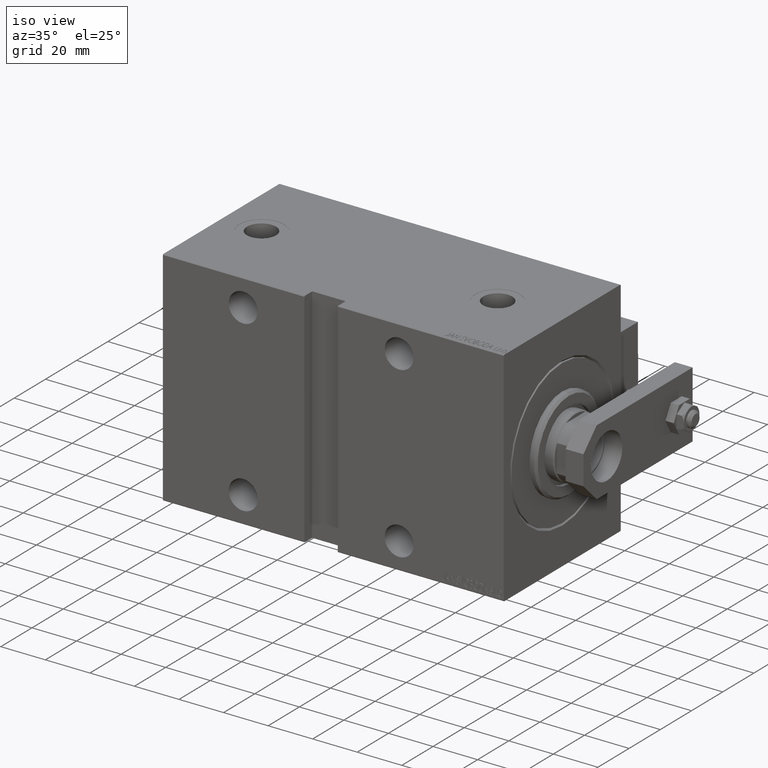
[diagram: clean part render]
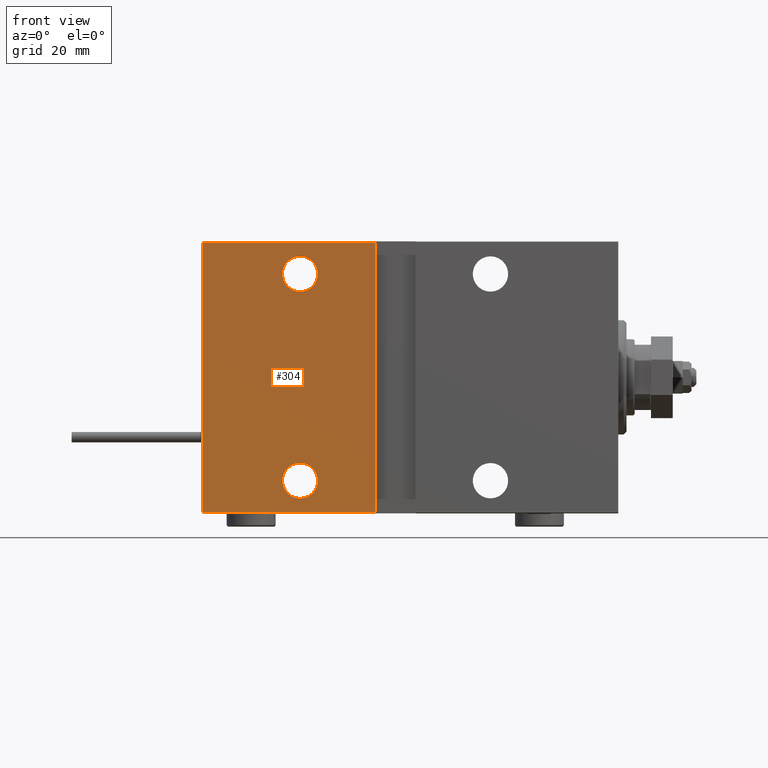
[diagram: tour spotlight — one face highlighted and labeled with its STEP entity id]
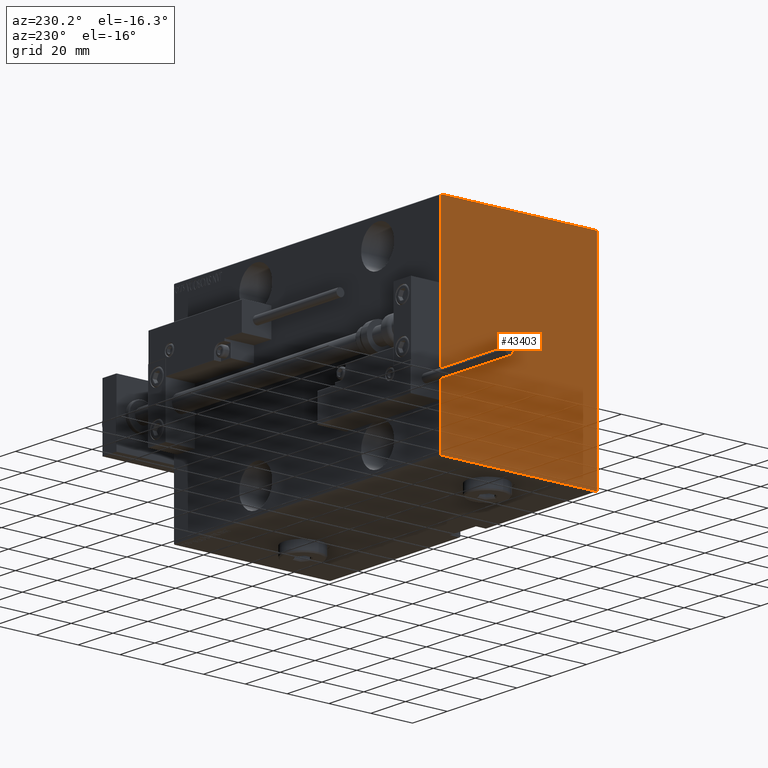
[diagram: tour spotlight — one face highlighted and labeled with its STEP entity id]
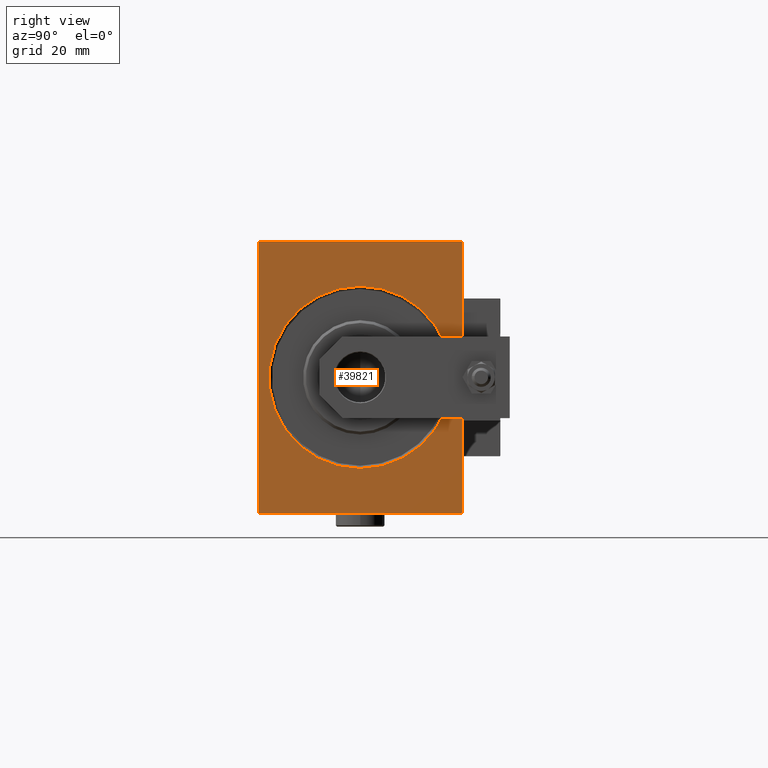
[diagram: tour spotlight — one face highlighted and labeled with its STEP entity id]
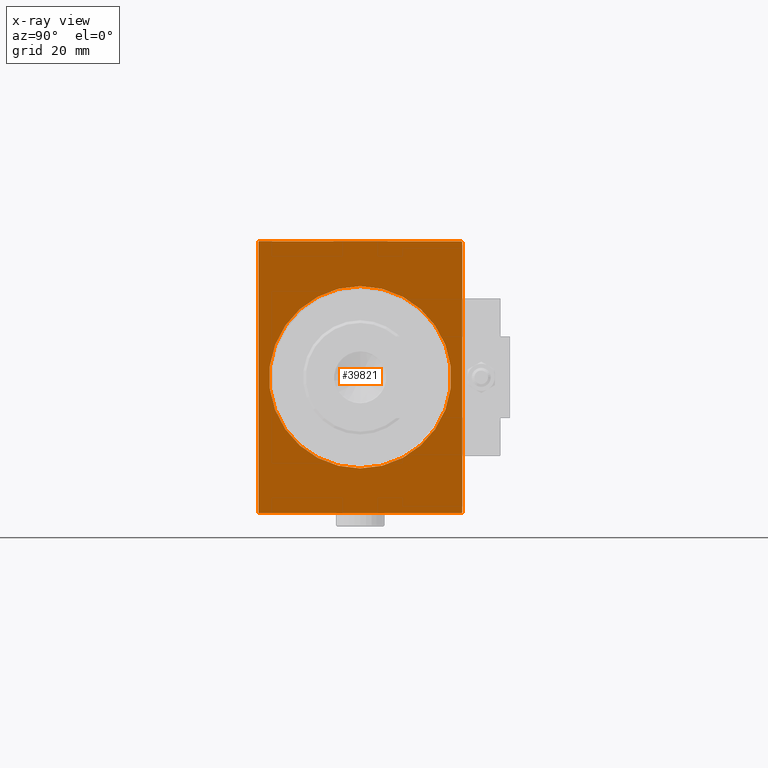
[diagram: x-ray of the same camera — body ghosted, this tour face saturated]
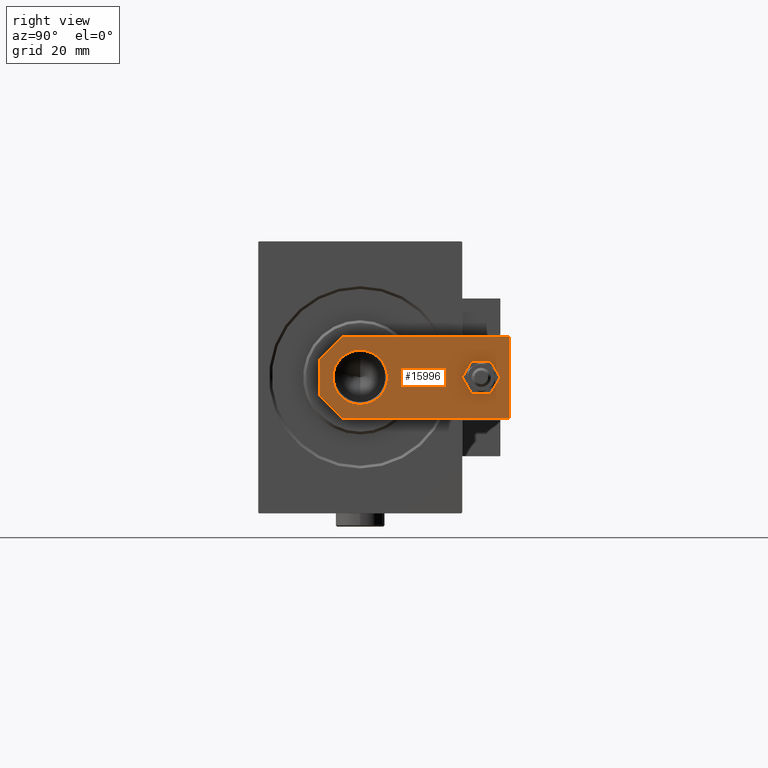
[diagram: tour spotlight — one face highlighted and labeled with its STEP entity id]
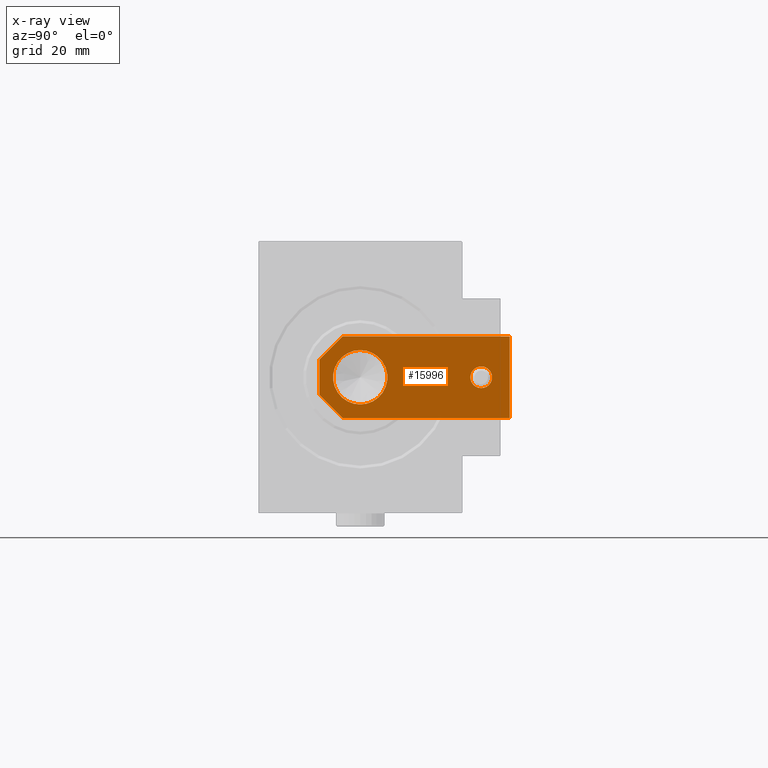
[diagram: x-ray of the same camera — body ghosted, this tour face saturated]
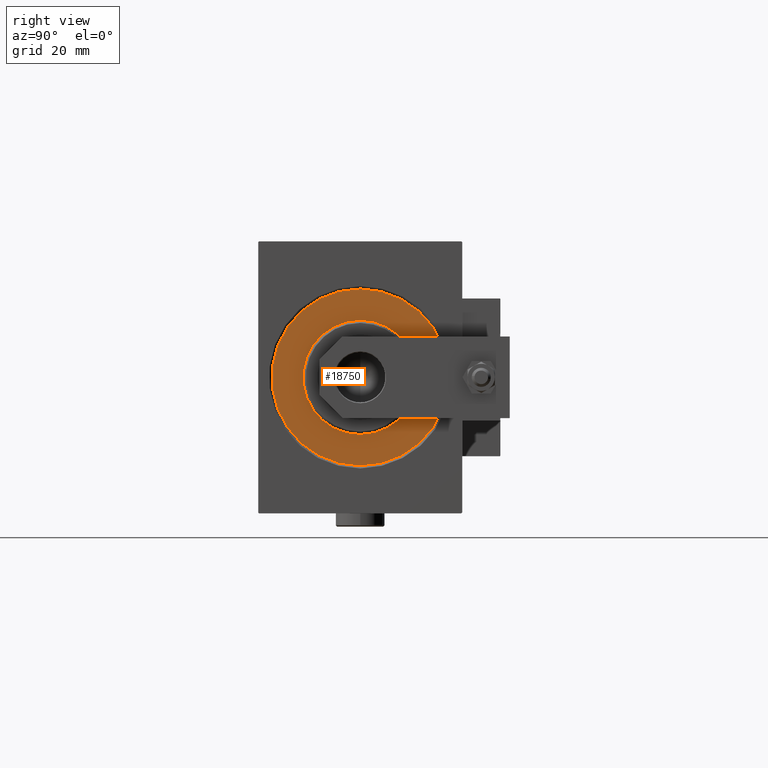
[diagram: tour spotlight — one face highlighted and labeled with its STEP entity id]
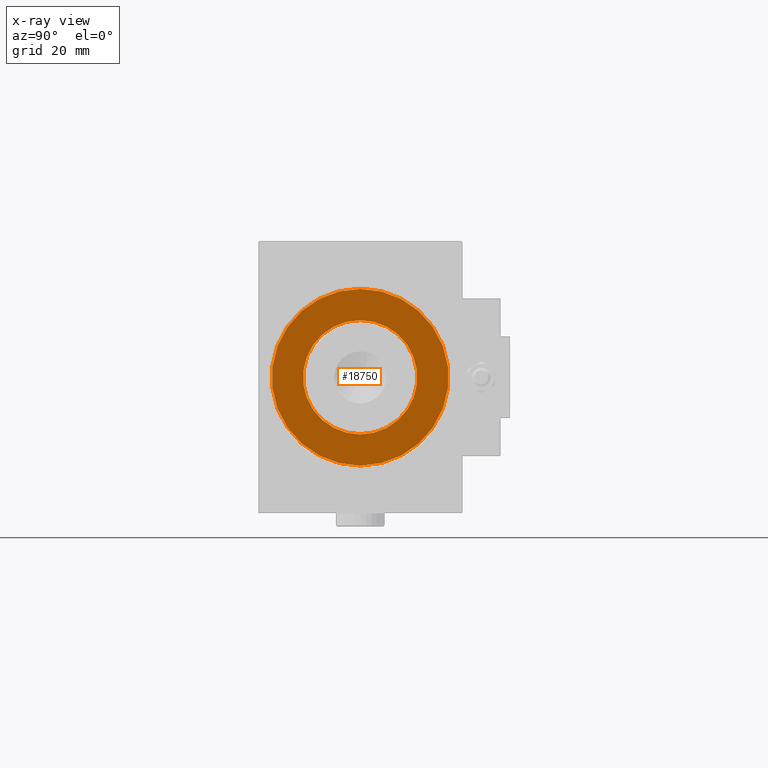
[diagram: x-ray of the same camera — body ghosted, this tour face saturated]
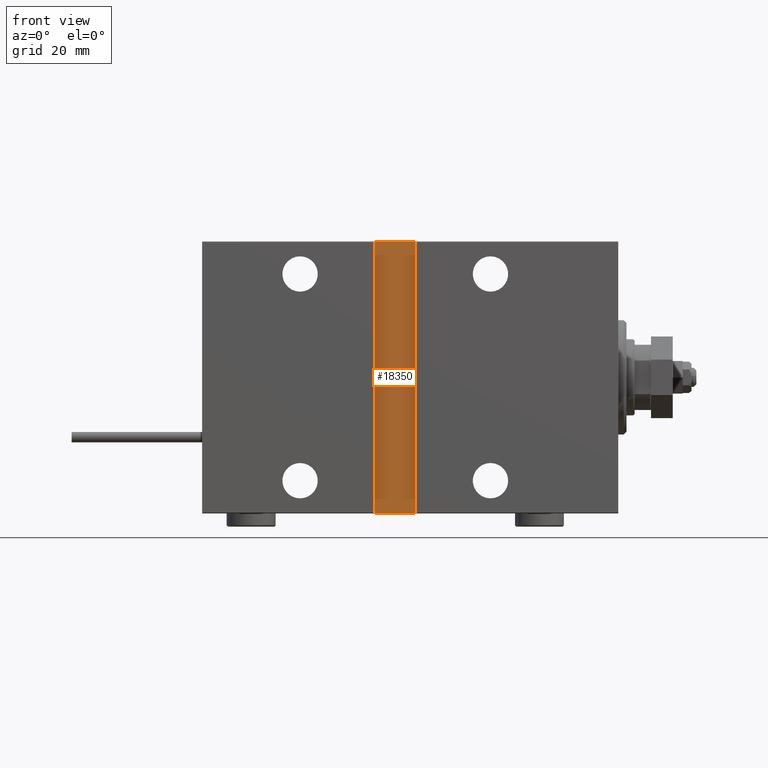
[diagram: tour spotlight — one face highlighted and labeled with its STEP entity id]
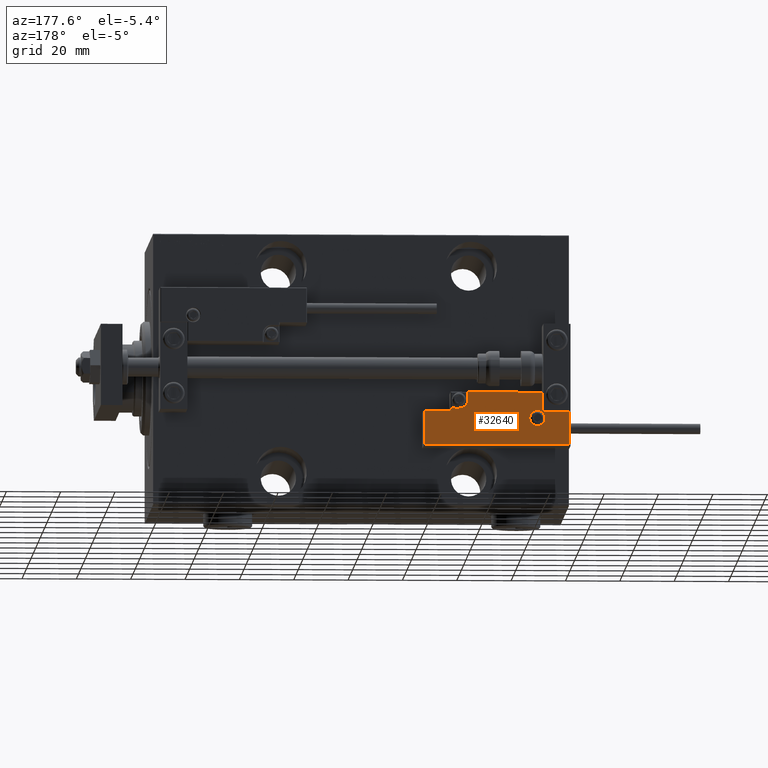
[diagram: tour spotlight — one face highlighted and labeled with its STEP entity id]
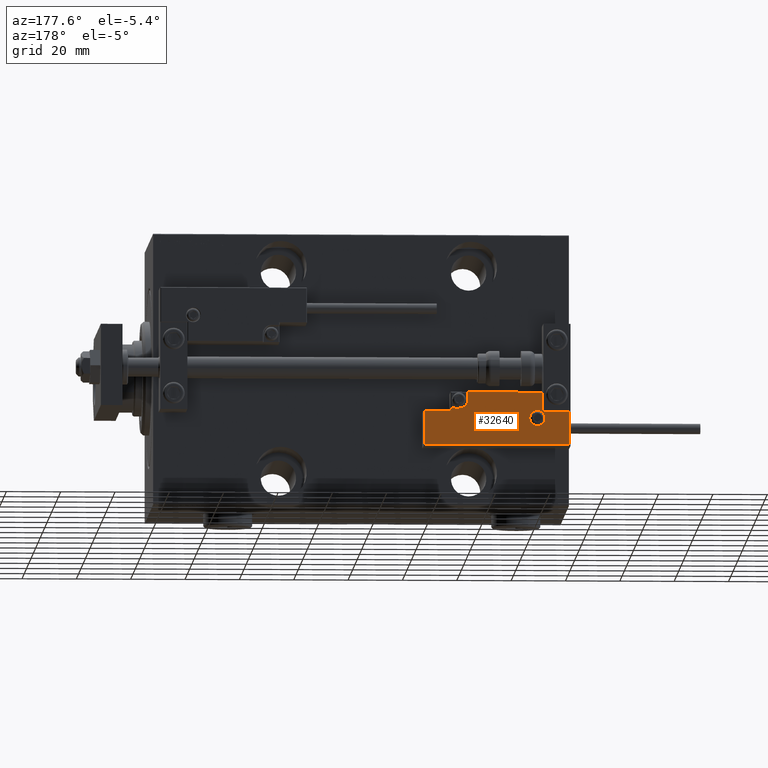
[diagram: tour spotlight — one face highlighted and labeled with its STEP entity id]
A machine part: a face-by-face anatomy tour. The part has 1349 B-rep faces; the first image is the clean iso view, then the 8 largest visible faces are spotlighted one at a time (largest first), each with its STEP entity span.

Face 1 — front view, entity #304. In plain terms, the highlighted planar face has unit normal (-0, 1, -0).
Definition (entity closure, byte-faithful):
#48 = AXIS2_PLACEMENT_3D ( 'NONE', #28458, #44341, #4858 ) ;
#59 = LINE ( 'NONE', #14856, #540 ) ;
#304 = ADVANCED_FACE ( 'NONE', ( #47703, #7703, #43019 ), #35471, .F. ) ;
#540 = VECTOR ( 'NONE', #31710, 1000.000000000000000 ) ;
#1743 = DIRECTION ( 'NONE',  ( 0.000000000000000000, -1.000000000000000000, -1.387778780781445182E-16 ) ) ;
#1776 = EDGE_CURVE ( 'NONE', #15075, #36837, #59, .T. ) ;
#2579 = ORIENTED_EDGE ( 'NONE', *, *, #18296, .F. ) ;
#3871 = EDGE_CURVE ( 'NONE', #50344, #28022, #34418, .T. ) ;
#4858 = DIRECTION ( 'NONE',  ( 0.000000000000000000, 0.000000000000000000, -1.000000000000000000 ) ) ;
#7139 = EDGE_LOOP ( 'NONE', ( #44939, #19442 ) ) ;
#7703 = FACE_BOUND ( 'NONE', #47715, .T. ) ;
#8218 = CARTESIAN_POINT ( 'NONE',  ( 153.0000000000000000, 37.50000000000000711, -50.00000000000000711 ) ) ;
#10520 = CARTESIAN_POINT ( 'NONE',  ( 89.50000000000000000, 37.50000000000000711, -50.00000000000009237 ) ) ;
#10876 = VECTOR ( 'NONE', #26336, 1000.000000000000000 ) ;
#11706 = LINE ( 'NONE', #47809, #29444 ) ;
#12225 = VERTEX_POINT ( 'NONE', #18222 ) ;
#12755 = CARTESIAN_POINT ( 'NONE',  ( 117.0000000000000142, 37.49999999999999289, 31.49999999999999289 ) ) ;
#13784 = CARTESIAN_POINT ( 'NONE',  ( 153.0000000000000000, 37.49999999999999289, 49.70000000000000284 ) ) ;
#14856 = CARTESIAN_POINT ( 'NONE',  ( 153.0000000000000000, 37.50000000000000711, -49.70000000000001705 ) ) ;
#15075 = VERTEX_POINT ( 'NONE', #38653 ) ;
#15098 = ORIENTED_EDGE ( 'NONE', *, *, #3871, .T. ) ;
#16041 = VERTEX_POINT ( 'NONE', #34749 ) ;
#17097 = CIRCLE ( 'NONE', #23730, 6.499999999999999112 ) ;
#18222 = CARTESIAN_POINT ( 'NONE',  ( 117.0000000000000000, 37.50000000000000711, -31.50000000000000000 ) ) ;
#18296 = EDGE_CURVE ( 'NONE', #16041, #36837, #38039, .T. ) ;
#19442 = ORIENTED_EDGE ( 'NONE', *, *, #29183, .T. ) ;
#19862 = CARTESIAN_POINT ( 'NONE',  ( 153.0000000000000000, 37.49999999999999289, 49.70000000000000284 ) ) ;
#23309 = DIRECTION ( 'NONE',  ( 0.000000000000000000, -1.000000000000000000, -1.387778780781445182E-16 ) ) ;
#23575 = DIRECTION ( 'NONE',  ( 0.000000000000000000, 0.000000000000000000, -1.000000000000000000 ) ) ;
#23730 = AXIS2_PLACEMENT_3D ( 'NONE', #44360, #1743, #28728 ) ;
#24338 = DIRECTION ( 'NONE',  ( 0.000000000000000000, -1.000000000000000000, -1.387778780781445182E-16 ) ) ;
#24597 = DIRECTION ( 'NONE',  ( 0.000000000000000000, 0.000000000000000000, -1.000000000000000000 ) ) ;
#25618 = EDGE_LOOP ( 'NONE', ( #51108, #42577, #2579, #46247 ) ) ;
#26336 = DIRECTION ( 'NONE',  ( 1.387778780781444196E-16, 1.387778780781444196E-16, -1.000000000000000000 ) ) ;
#28022 = VERTEX_POINT ( 'NONE', #43839 ) ;
#28062 = EDGE_CURVE ( 'NONE', #28022, #50344, #48597, .T. ) ;
#28458 = CARTESIAN_POINT ( 'NONE',  ( 117.0000000000000000, 37.50000000000000711, -38.00000000000000000 ) ) ;
#28728 = DIRECTION ( 'NONE',  ( 0.000000000000000000, 0.000000000000000000, -1.000000000000000000 ) ) ;
#29183 = EDGE_CURVE ( 'NONE', #29515, #12225, #17097, .T. ) ;
#29444 = VECTOR ( 'NONE', #40018, 1000.000000000000000 ) ;
#29515 = VERTEX_POINT ( 'NONE', #41161 ) ;
#29596 = LINE ( 'NONE', #13784, #48949 ) ;
#31005 = EDGE_CURVE ( 'NONE', #15075, #41556, #11706, .T. ) ;
#31710 = DIRECTION ( 'NONE',  ( -1.000000000000000000, 0.000000000000000000, 0.000000000000000000 ) ) ;
#34418 = CIRCLE ( 'NONE', #41085, 6.499999999999999112 ) ;
#34749 = CARTESIAN_POINT ( 'NONE',  ( 89.49999999999998579, 37.49999999999999289, 49.69999999999997442 ) ) ;
#34992 = CARTESIAN_POINT ( 'NONE',  ( 117.0000000000000142, 37.49999999999999289, 37.99999999999999289 ) ) ;
#35471 = PLANE ( 'NONE',  #43573 ) ;
#36837 = VERTEX_POINT ( 'NONE', #49320 ) ;
#38039 = LINE ( 'NONE', #10520, #10876 ) ;
#38653 = CARTESIAN_POINT ( 'NONE',  ( 153.0000000000000000, 37.50000000000000711, -49.70000000000001705 ) ) ;
#39904 = DIRECTION ( 'NONE',  ( 0.000000000000000000, -1.000000000000000000, -1.387778780781445182E-16 ) ) ;
#40018 = DIRECTION ( 'NONE',  ( 0.000000000000000000, -1.387778780781445182E-16, 1.000000000000000000 ) ) ;
#40815 = DIRECTION ( 'NONE',  ( 1.000000000000000000, 0.000000000000000000, 0.000000000000000000 ) ) ;
#41085 = AXIS2_PLACEMENT_3D ( 'NONE', #48245, #24338, #24597 ) ;
#41161 = CARTESIAN_POINT ( 'NONE',  ( 117.0000000000000000, 37.50000000000000711, -44.50000000000000000 ) ) ;
#41556 = VERTEX_POINT ( 'NONE', #19862 ) ;
#42577 = ORIENTED_EDGE ( 'NONE', *, *, #1776, .T. ) ;
#43019 = FACE_OUTER_BOUND ( 'NONE', #25618, .T. ) ;
#43573 = AXIS2_PLACEMENT_3D ( 'NONE', #8218, #39904, #51326 ) ;
#43839 = CARTESIAN_POINT ( 'NONE',  ( 117.0000000000000142, 37.49999999999999289, 44.49999999999999289 ) ) ;
#44019 = CIRCLE ( 'NONE', #48, 6.499999999999999112 ) ;
#44341 = DIRECTION ( 'NONE',  ( 0.000000000000000000, -1.000000000000000000, -1.387778780781445182E-16 ) ) ;
#44360 = CARTESIAN_POINT ( 'NONE',  ( 117.0000000000000000, 37.50000000000000711, -38.00000000000000000 ) ) ;
#44939 = ORIENTED_EDGE ( 'NONE', *, *, #47218, .T. ) ;
#45917 = EDGE_CURVE ( 'NONE', #16041, #41556, #29596, .T. ) ;
#46098 = AXIS2_PLACEMENT_3D ( 'NONE', #34992, #23309, #23575 ) ;
#46247 = ORIENTED_EDGE ( 'NONE', *, *, #45917, .T. ) ;
#47218 = EDGE_CURVE ( 'NONE', #12225, #29515, #44019, .T. ) ;
#47703 = FACE_BOUND ( 'NONE', #7139, .T. ) ;
#47715 = EDGE_LOOP ( 'NONE', ( #50992, #15098 ) ) ;
#47809 = CARTESIAN_POINT ( 'NONE',  ( 153.0000000000000000, 37.50000000000000711, -50.00000000000000711 ) ) ;
#48245 = CARTESIAN_POINT ( 'NONE',  ( 117.0000000000000142, 37.49999999999999289, 37.99999999999999289 ) ) ;
#48597 = CIRCLE ( 'NONE', #46098, 6.499999999999999112 ) ;
#48949 = VECTOR ( 'NONE', #40815, 1000.000000000000000 ) ;
#49320 = CARTESIAN_POINT ( 'NONE',  ( 89.50000000000000000, 37.50000000000000711, -49.70000000000001705 ) ) ;
#50344 = VERTEX_POINT ( 'NONE', #12755 ) ;
#50992 = ORIENTED_EDGE ( 'NONE', *, *, #28062, .T. ) ;
#51108 = ORIENTED_EDGE ( 'NONE', *, *, #31005, .F. ) ;
#51326 = DIRECTION ( 'NONE',  ( 0.000000000000000000, 1.387778780781445182E-16, -1.000000000000000000 ) ) ;

Face 2 — auxiliary view, entity #43403. In plain terms, the highlighted planar face has unit normal (-1, 0, 0).
Definition (entity closure, byte-faithful):
#107 = ORIENTED_EDGE ( 'NONE', *, *, #23445, .T. ) ;
#183 = CARTESIAN_POINT ( 'NONE',  ( 153.0000000000000000, 37.20000000000004547, -50.00000000000000711 ) ) ;
#987 = EDGE_LOOP ( 'NONE', ( #49756, #1854, #36808, #49160, #2818, #28843, #107, #46627 ) ) ;
#1854 = ORIENTED_EDGE ( 'NONE', *, *, #18291, .T. ) ;
#2818 = ORIENTED_EDGE ( 'NONE', *, *, #34278, .T. ) ;
#3927 = FACE_OUTER_BOUND ( 'NONE', #987, .T. ) ;
#5504 = LINE ( 'NONE', #29624, #14542 ) ;
#6050 = LINE ( 'NONE', #46542, #44506 ) ;
#7123 = LINE ( 'NONE', #41689, #43209 ) ;
#9097 = VECTOR ( 'NONE', #11927, 1000.000000000000114 ) ;
#10045 = VERTEX_POINT ( 'NONE', #14065 ) ;
#10173 = CARTESIAN_POINT ( 'NONE',  ( 153.0000000000000000, -37.19999999999996732, 50.00000000000000000 ) ) ;
#10713 = AXIS2_PLACEMENT_3D ( 'NONE', #28747, #19761, #35595 ) ;
#11706 = LINE ( 'NONE', #47809, #29444 ) ;
#11925 = VERTEX_POINT ( 'NONE', #50487 ) ;
#11927 = DIRECTION ( 'NONE',  ( -0.000000000000000000, -0.7071067811865556774, 0.7071067811865393571 ) ) ;
#13303 = CARTESIAN_POINT ( 'NONE',  ( 153.0000000000000000, -43.60000000000174225, -43.59999999999771347 ) ) ;
#14065 = CARTESIAN_POINT ( 'NONE',  ( 153.0000000000000000, -37.20000000000003126, -50.00000000000001421 ) ) ;
#14326 = DIRECTION ( 'NONE',  ( 0.000000000000000000, -0.7071067811865556774, -0.7071067811865392461 ) ) ;
#14542 = VECTOR ( 'NONE', #14326, 1000.000000000000114 ) ;
#15075 = VERTEX_POINT ( 'NONE', #38653 ) ;
#16248 = EDGE_CURVE ( 'NONE', #17158, #10045, #48897, .T. ) ;
#17158 = VERTEX_POINT ( 'NONE', #48205 ) ;
#17982 = DIRECTION ( 'NONE',  ( 0.000000000000000000, -1.000000000000000000, -1.850371707708594563E-16 ) ) ;
#18291 = EDGE_CURVE ( 'NONE', #22064, #15075, #7123, .T. ) ;
#19182 = CARTESIAN_POINT ( 'NONE',  ( 153.0000000000000000, 43.59999999999956088, 43.60000000000056986 ) ) ;
#19761 = DIRECTION ( 'NONE',  ( 1.000000000000000000, 0.000000000000000000, 0.000000000000000000 ) ) ;
#19862 = CARTESIAN_POINT ( 'NONE',  ( 153.0000000000000000, 37.49999999999999289, 49.70000000000000284 ) ) ;
#22064 = VERTEX_POINT ( 'NONE', #183 ) ;
#23445 = EDGE_CURVE ( 'NONE', #11925, #17158, #38754, .T. ) ;
#26250 = LINE ( 'NONE', #42110, #42375 ) ;
#28747 = CARTESIAN_POINT ( 'NONE',  ( 153.0000000000000000, 0.000000000000000000, 0.000000000000000000 ) ) ;
#28843 = ORIENTED_EDGE ( 'NONE', *, *, #30812, .T. ) ;
#29444 = VECTOR ( 'NONE', #40018, 1000.000000000000000 ) ;
#29624 = CARTESIAN_POINT ( 'NONE',  ( 153.0000000000000000, -43.59999999999956088, 43.60000000000057696 ) ) ;
#30723 = DIRECTION ( 'NONE',  ( -0.000000000000000000, 0.7071067811865066055, 0.7071067811865884289 ) ) ;
#30812 = EDGE_CURVE ( 'NONE', #37458, #11925, #5504, .T. ) ;
#31005 = EDGE_CURVE ( 'NONE', #15075, #41556, #11706, .T. ) ;
#32638 = VERTEX_POINT ( 'NONE', #42248 ) ;
#32770 = DIRECTION ( 'NONE',  ( -0.000000000000000000, 0.7071067811865149322, -0.7071067811865802133 ) ) ;
#33780 = DIRECTION ( 'NONE',  ( 0.000000000000000000, 1.000000000000000000, 9.251858538542970348E-17 ) ) ;
#34278 = EDGE_CURVE ( 'NONE', #32638, #37458, #6050, .T. ) ;
#35595 = DIRECTION ( 'NONE',  ( 0.000000000000000000, 0.000000000000000000, -1.000000000000000000 ) ) ;
#36808 = ORIENTED_EDGE ( 'NONE', *, *, #31005, .T. ) ;
#37458 = VERTEX_POINT ( 'NONE', #10173 ) ;
#37596 = VECTOR ( 'NONE', #47334, 1000.000000000000000 ) ;
#38502 = CARTESIAN_POINT ( 'NONE',  ( 153.0000000000000000, -37.50000000000000000, 50.00000000000000000 ) ) ;
#38653 = CARTESIAN_POINT ( 'NONE',  ( 153.0000000000000000, 37.50000000000000711, -49.70000000000001705 ) ) ;
#38754 = LINE ( 'NONE', #38502, #37596 ) ;
#39195 = LINE ( 'NONE', #19182, #9097 ) ;
#39958 = VECTOR ( 'NONE', #32770, 999.9999999999998863 ) ;
#40018 = DIRECTION ( 'NONE',  ( 0.000000000000000000, -1.387778780781445182E-16, 1.000000000000000000 ) ) ;
#41556 = VERTEX_POINT ( 'NONE', #19862 ) ;
#41689 = CARTESIAN_POINT ( 'NONE',  ( 153.0000000000000000, 43.60000000000217568, -43.59999999999713083 ) ) ;
#42110 = CARTESIAN_POINT ( 'NONE',  ( 153.0000000000000000, -37.50000000000000000, -50.00000000000001421 ) ) ;
#42248 = CARTESIAN_POINT ( 'NONE',  ( 153.0000000000000000, 37.19999999999996732, 50.00000000000001421 ) ) ;
#42375 = VECTOR ( 'NONE', #33780, 1000.000000000000000 ) ;
#43209 = VECTOR ( 'NONE', #30723, 1000.000000000000000 ) ;
#43403 = ADVANCED_FACE ( 'NONE', ( #3927 ), #48785, .T. ) ;
#44506 = VECTOR ( 'NONE', #17982, 1000.000000000000000 ) ;
#44578 = EDGE_CURVE ( 'NONE', #41556, #32638, #39195, .T. ) ;
#46542 = CARTESIAN_POINT ( 'NONE',  ( 153.0000000000000000, 37.49999999999999289, 50.00000000000001421 ) ) ;
#46627 = ORIENTED_EDGE ( 'NONE', *, *, #16248, .T. ) ;
#47334 = DIRECTION ( 'NONE',  ( 0.000000000000000000, 0.000000000000000000, -1.000000000000000000 ) ) ;
#47809 = CARTESIAN_POINT ( 'NONE',  ( 153.0000000000000000, 37.50000000000000711, -50.00000000000000711 ) ) ;
#48101 = EDGE_CURVE ( 'NONE', #10045, #22064, #26250, .T. ) ;
#48205 = CARTESIAN_POINT ( 'NONE',  ( 153.0000000000000000, -37.50000000000000000, -49.70000000000002416 ) ) ;
#48785 = PLANE ( 'NONE',  #10713 ) ;
#48897 = LINE ( 'NONE', #13303, #39958 ) ;
#49160 = ORIENTED_EDGE ( 'NONE', *, *, #44578, .T. ) ;
#49756 = ORIENTED_EDGE ( 'NONE', *, *, #48101, .T. ) ;
#50487 = CARTESIAN_POINT ( 'NONE',  ( 153.0000000000000000, -37.50000000000000000, 49.69999999999998153 ) ) ;

Face 3 — right view, entity #39821. An x-ray twin of the same camera follows (body ghosted, this face saturated) — the face is partly hidden behind the body. In plain terms, the highlighted planar face has unit normal (-1, 0, 0).
Definition (entity closure, byte-faithful):
#95 = VERTEX_POINT ( 'NONE', #36306 ) ;
#1309 = EDGE_CURVE ( 'NONE', #21292, #30157, #45591, .T. ) ;
#1712 = CARTESIAN_POINT ( 'NONE',  ( 0.000000000000000000, 0.000000000000000000, 0.000000000000000000 ) ) ;
#2058 = AXIS2_PLACEMENT_3D ( 'NONE', #1712, #32858, #48735 ) ;
#3308 = DIRECTION ( 'NONE',  ( 1.000000000000000000, 0.000000000000000000, 0.000000000000000000 ) ) ;
#3611 = CARTESIAN_POINT ( 'NONE',  ( 0.000000000000000000, 37.19999999999996732, 50.00000000000001421 ) ) ;
#4614 = CARTESIAN_POINT ( 'NONE',  ( 0.000000000000000000, 37.49999999999999289, 50.00000000000001421 ) ) ;
#5848 = CIRCLE ( 'NONE', #20785, 33.50000000000000000 ) ;
#5878 = CARTESIAN_POINT ( 'NONE',  ( 0.000000000000000000, 4.102566777143633774E-15, -33.50000000000000000 ) ) ;
#6116 = CARTESIAN_POINT ( 'NONE',  ( 0.000000000000000000, 37.50000000000000711, -49.70000000000001705 ) ) ;
#6384 = ORIENTED_EDGE ( 'NONE', *, *, #45992, .T. ) ;
#6697 = CARTESIAN_POINT ( 'NONE',  ( 0.000000000000000000, 0.000000000000000000, 0.000000000000000000 ) ) ;
#6895 = ORIENTED_EDGE ( 'NONE', *, *, #39873, .T. ) ;
#7782 = DIRECTION ( 'NONE',  ( -0.000000000000000000, -0.7071067811865149322, 0.7071067811865802133 ) ) ;
#7813 = ORIENTED_EDGE ( 'NONE', *, *, #31423, .F. ) ;
#8082 = VERTEX_POINT ( 'NONE', #44707 ) ;
#9128 = VECTOR ( 'NONE', #16083, 1000.000000000000114 ) ;
#9362 = LINE ( 'NONE', #44440, #31602 ) ;
#9401 = ORIENTED_EDGE ( 'NONE', *, *, #1309, .T. ) ;
#9813 = CARTESIAN_POINT ( 'NONE',  ( 0.000000000000000000, -37.20000000000003126, -50.00000000000001421 ) ) ;
#9891 = LINE ( 'NONE', #37150, #34425 ) ;
#10352 = PLANE ( 'NONE',  #33056 ) ;
#10439 = VECTOR ( 'NONE', #15541, 1000.000000000000000 ) ;
#10980 = VERTEX_POINT ( 'NONE', #5878 ) ;
#12315 = EDGE_CURVE ( 'NONE', #43502, #30157, #46280, .T. ) ;
#12417 = LINE ( 'NONE', #4614, #10439 ) ;
#12842 = CIRCLE ( 'NONE', #2058, 33.50000000000000000 ) ;
#15541 = DIRECTION ( 'NONE',  ( 0.000000000000000000, -1.000000000000000000, -1.850371707708594563E-16 ) ) ;
#15654 = VECTOR ( 'NONE', #27683, 1000.000000000000114 ) ;
#16083 = DIRECTION ( 'NONE',  ( -0.000000000000000000, 0.7071067811865556774, -0.7071067811865393571 ) ) ;
#16324 = EDGE_LOOP ( 'NONE', ( #7813, #25555, #39204, #9401, #45371, #6384, #41026, #6895 ) ) ;
#17062 = CARTESIAN_POINT ( 'NONE',  ( 0.000000000000000000, 37.19999999999996732, 50.00000000000001421 ) ) ;
#18229 = VECTOR ( 'NONE', #7782, 999.9999999999998863 ) ;
#18799 = CARTESIAN_POINT ( 'NONE',  ( 0.000000000000000000, 37.49999999999999289, 49.70000000000000284 ) ) ;
#19132 = DIRECTION ( 'NONE',  ( 0.000000000000000000, 0.000000000000000000, -1.000000000000000000 ) ) ;
#20785 = AXIS2_PLACEMENT_3D ( 'NONE', #38886, #3308, #19132 ) ;
#21292 = VERTEX_POINT ( 'NONE', #40228 ) ;
#22534 = DIRECTION ( 'NONE',  ( 1.000000000000000000, 0.000000000000000000, 0.000000000000000000 ) ) ;
#23022 = VERTEX_POINT ( 'NONE', #29271 ) ;
#23798 = CARTESIAN_POINT ( 'NONE',  ( 0.000000000000000000, -37.50000000000000000, 49.69999999999998153 ) ) ;
#25180 = DIRECTION ( 'NONE',  ( 0.000000000000000000, 0.000000000000000000, -1.000000000000000000 ) ) ;
#25267 = VERTEX_POINT ( 'NONE', #23798 ) ;
#25555 = ORIENTED_EDGE ( 'NONE', *, *, #46048, .T. ) ;
#25655 = FACE_OUTER_BOUND ( 'NONE', #16324, .T. ) ;
#25917 = FACE_BOUND ( 'NONE', #47888, .T. ) ;
#26271 = CARTESIAN_POINT ( 'NONE',  ( 0.000000000000000000, -37.50000000000000000, -50.00000000000001421 ) ) ;
#26272 = EDGE_CURVE ( 'NONE', #23022, #10980, #12842, .T. ) ;
#27072 = EDGE_CURVE ( 'NONE', #21292, #43840, #9891, .T. ) ;
#27683 = DIRECTION ( 'NONE',  ( -0.000000000000000000, 0.7071067811865556774, 0.7071067811865392461 ) ) ;
#29106 = ORIENTED_EDGE ( 'NONE', *, *, #47099, .T. ) ;
#29179 = ORIENTED_EDGE ( 'NONE', *, *, #26272, .T. ) ;
#29271 = CARTESIAN_POINT ( 'NONE',  ( 0.000000000000000000, 0.000000000000000000, 33.50000000000000000 ) ) ;
#30157 = VERTEX_POINT ( 'NONE', #32455 ) ;
#31423 = EDGE_CURVE ( 'NONE', #37859, #95, #12417, .T. ) ;
#31602 = VECTOR ( 'NONE', #25180, 1000.000000000000000 ) ;
#32329 = VECTOR ( 'NONE', #46527, 1000.000000000000000 ) ;
#32455 = CARTESIAN_POINT ( 'NONE',  ( 0.000000000000000000, 37.20000000000004547, -50.00000000000000711 ) ) ;
#32858 = DIRECTION ( 'NONE',  ( 1.000000000000000000, 0.000000000000000000, 0.000000000000000000 ) ) ;
#33056 = AXIS2_PLACEMENT_3D ( 'NONE', #6697, #22534, #37876 ) ;
#34425 = VECTOR ( 'NONE', #44705, 1000.000000000000000 ) ;
#36306 = CARTESIAN_POINT ( 'NONE',  ( 0.000000000000000000, -37.19999999999996732, 50.00000000000000000 ) ) ;
#37150 = CARTESIAN_POINT ( 'NONE',  ( 0.000000000000000000, 37.50000000000000711, -50.00000000000000711 ) ) ;
#37799 = DIRECTION ( 'NONE',  ( 0.000000000000000000, -0.7071067811865066055, -0.7071067811865884289 ) ) ;
#37859 = VERTEX_POINT ( 'NONE', #17062 ) ;
#37876 = DIRECTION ( 'NONE',  ( 0.000000000000000000, 0.000000000000000000, -1.000000000000000000 ) ) ;
#38882 = LINE ( 'NONE', #46684, #15654 ) ;
#38886 = CARTESIAN_POINT ( 'NONE',  ( 0.000000000000000000, 0.000000000000000000, 0.000000000000000000 ) ) ;
#39204 = ORIENTED_EDGE ( 'NONE', *, *, #27072, .F. ) ;
#39718 = LINE ( 'NONE', #43881, #18229 ) ;
#39821 = ADVANCED_FACE ( 'NONE', ( #25917, #25655 ), #10352, .F. ) ;
#39873 = EDGE_CURVE ( 'NONE', #25267, #95, #38882, .T. ) ;
#40228 = CARTESIAN_POINT ( 'NONE',  ( 0.000000000000000000, 37.50000000000000711, -49.70000000000001705 ) ) ;
#40246 = LINE ( 'NONE', #3611, #9128 ) ;
#41026 = ORIENTED_EDGE ( 'NONE', *, *, #49027, .F. ) ;
#43502 = VERTEX_POINT ( 'NONE', #9813 ) ;
#43840 = VERTEX_POINT ( 'NONE', #18799 ) ;
#43881 = CARTESIAN_POINT ( 'NONE',  ( 0.000000000000000000, -37.20000000000003126, -50.00000000000001421 ) ) ;
#44440 = CARTESIAN_POINT ( 'NONE',  ( 0.000000000000000000, -37.50000000000000000, 50.00000000000000000 ) ) ;
#44705 = DIRECTION ( 'NONE',  ( 0.000000000000000000, -1.387778780781445182E-16, 1.000000000000000000 ) ) ;
#44707 = CARTESIAN_POINT ( 'NONE',  ( 0.000000000000000000, -37.50000000000000000, -49.70000000000002416 ) ) ;
#45371 = ORIENTED_EDGE ( 'NONE', *, *, #12315, .F. ) ;
#45591 = LINE ( 'NONE', #6116, #46911 ) ;
#45992 = EDGE_CURVE ( 'NONE', #43502, #8082, #39718, .T. ) ;
#46048 = EDGE_CURVE ( 'NONE', #37859, #43840, #40246, .T. ) ;
#46280 = LINE ( 'NONE', #26271, #32329 ) ;
#46527 = DIRECTION ( 'NONE',  ( 0.000000000000000000, 1.000000000000000000, 9.251858538542970348E-17 ) ) ;
#46684 = CARTESIAN_POINT ( 'NONE',  ( 0.000000000000000000, -37.50000000000000000, 49.69999999999998153 ) ) ;
#46911 = VECTOR ( 'NONE', #37799, 1000.000000000000000 ) ;
#47099 = EDGE_CURVE ( 'NONE', #10980, #23022, #5848, .T. ) ;
#47888 = EDGE_LOOP ( 'NONE', ( #29179, #29106 ) ) ;
#48735 = DIRECTION ( 'NONE',  ( 0.000000000000000000, 0.000000000000000000, -1.000000000000000000 ) ) ;
#49027 = EDGE_CURVE ( 'NONE', #25267, #8082, #9362, .T. ) ;

Face 4 — right view, entity #15996. An x-ray twin of the same camera follows (body ghosted, this face saturated) — the face is partly hidden behind the body. In plain terms, the highlighted planar face has unit normal (1, 0, -0).
Definition (entity closure, byte-faithful):
#261 = DIRECTION ( 'NONE',  ( 1.000000000000000000, 0.000000000000000000, 0.000000000000000000 ) ) ;
#309 = CARTESIAN_POINT ( 'NONE',  ( -4.000000000000000888, 59.50000000000001421, 8.000000000000000000 ) ) ;
#1175 = AXIS2_PLACEMENT_3D ( 'NONE', #19978, #20494, #261 ) ;
#1851 = LINE ( 'NONE', #23292, #39690 ) ;
#2073 = PLANE ( 'NONE',  #29124 ) ;
#2400 = ORIENTED_EDGE ( 'NONE', *, *, #7792, .T. ) ;
#2577 = DIRECTION ( 'NONE',  ( 0.000000000000000000, 0.000000000000000000, 1.000000000000000000 ) ) ;
#2921 = LINE ( 'NONE', #34591, #10631 ) ;
#3471 = CARTESIAN_POINT ( 'NONE',  ( 6.499999999999974243, 0.000000000000000000, 8.000000000000000000 ) ) ;
#3645 = ORIENTED_EDGE ( 'NONE', *, *, #38630, .F. ) ;
#6194 = CARTESIAN_POINT ( 'NONE',  ( 15.00000000000000000, 70.00000000000000000, 8.000000000000000000 ) ) ;
#7760 = CARTESIAN_POINT ( 'NONE',  ( -6.499999999999993783, 0.000000000000000000, 8.000000000000000000 ) ) ;
#7792 = EDGE_CURVE ( 'NONE', #23921, #11605, #2921, .T. ) ;
#8211 = EDGE_CURVE ( 'NONE', #11605, #28942, #1851, .T. ) ;
#8976 = VERTEX_POINT ( 'NONE', #49123 ) ;
#9588 = LINE ( 'NONE', #37623, #10613 ) ;
#10126 = DIRECTION ( 'NONE',  ( 1.000000000000000000, 0.000000000000000000, 0.000000000000000000 ) ) ;
#10185 = CARTESIAN_POINT ( 'NONE',  ( -15.00000000000000355, 8.500000000000028422, 8.000000000000000000 ) ) ;
#10613 = VECTOR ( 'NONE', #49333, 1000.000000000000000 ) ;
#10631 = VECTOR ( 'NONE', #42152, 1000.000000000000000 ) ;
#10842 = VECTOR ( 'NONE', #16418, 1000.000000000000114 ) ;
#11605 = VERTEX_POINT ( 'NONE', #27515 ) ;
#11616 = DIRECTION ( 'NONE',  ( 1.000000000000000000, 0.000000000000000000, 0.000000000000000000 ) ) ;
#13128 = AXIS2_PLACEMENT_3D ( 'NONE', #29563, #2577, #45437 ) ;
#13890 = EDGE_CURVE ( 'NONE', #30602, #8976, #23954, .T. ) ;
#13934 = ORIENTED_EDGE ( 'NONE', *, *, #46053, .T. ) ;
#14207 = LINE ( 'NONE', #19097, #47046 ) ;
#14398 = VERTEX_POINT ( 'NONE', #43314 ) ;
#14471 = EDGE_LOOP ( 'NONE', ( #36232, #33615, #13934, #35277, #31046, #2400 ) ) ;
#15825 = LINE ( 'NONE', #50892, #42308 ) ;
#15866 = VERTEX_POINT ( 'NONE', #23975 ) ;
#15996 = ADVANCED_FACE ( 'NONE', ( #37642, #22056, #49084 ), #2073, .T. ) ;
#16418 = DIRECTION ( 'NONE',  ( 0.7071067811865483499, 0.7071067811865465735, -0.000000000000000000 ) ) ;
#18536 = CIRCLE ( 'NONE', #1175, 10.00000000000000178 ) ;
#19097 = CARTESIAN_POINT ( 'NONE',  ( 15.00000000000000355, 0.000000000000000000, 8.000000000000000000 ) ) ;
#19978 = CARTESIAN_POINT ( 'NONE',  ( -9.629649721936179265E-32, 15.00000000000001066, 8.000000000000000000 ) ) ;
#20494 = DIRECTION ( 'NONE',  ( 0.000000000000000000, 0.000000000000000000, 1.000000000000000000 ) ) ;
#22056 = FACE_OUTER_BOUND ( 'NONE', #14471, .T. ) ;
#23292 = CARTESIAN_POINT ( 'NONE',  ( -14.99999999999999822, 70.00000000000000000, 8.000000000000000000 ) ) ;
#23803 = EDGE_CURVE ( 'NONE', #14398, #15866, #18536, .T. ) ;
#23921 = VERTEX_POINT ( 'NONE', #6194 ) ;
#23954 = LINE ( 'NONE', #32496, #10842 ) ;
#23975 = CARTESIAN_POINT ( 'NONE',  ( 10.00000000000000178, 15.00000000000001243, 8.000000000000000000 ) ) ;
#24874 = CIRCLE ( 'NONE', #28183, 4.000000000000000888 ) ;
#27515 = CARTESIAN_POINT ( 'NONE',  ( -14.99999999999999822, 70.00000000000000000, 8.000000000000000000 ) ) ;
#28183 = AXIS2_PLACEMENT_3D ( 'NONE', #49753, #29979, #41956 ) ;
#28942 = VERTEX_POINT ( 'NONE', #10185 ) ;
#29124 = AXIS2_PLACEMENT_3D ( 'NONE', #29825, #45700, #10126 ) ;
#29563 = CARTESIAN_POINT ( 'NONE',  ( -1.432611055310774642E-16, 59.50000000000001421, 8.000000000000000000 ) ) ;
#29825 = CARTESIAN_POINT ( 'NONE',  ( 0.000000000000000000, 0.000000000000000000, 8.000000000000000000 ) ) ;
#29979 = DIRECTION ( 'NONE',  ( 0.000000000000000000, 0.000000000000000000, 1.000000000000000000 ) ) ;
#30602 = VERTEX_POINT ( 'NONE', #3471 ) ;
#31046 = ORIENTED_EDGE ( 'NONE', *, *, #32656, .T. ) ;
#31330 = DIRECTION ( 'NONE',  ( 0.000000000000000000, 0.000000000000000000, 1.000000000000000000 ) ) ;
#32496 = CARTESIAN_POINT ( 'NONE',  ( 3.249999999999979128, -3.249999999999987121, 8.000000000000000000 ) ) ;
#32656 = EDGE_CURVE ( 'NONE', #8976, #23921, #14207, .T. ) ;
#32930 = ORIENTED_EDGE ( 'NONE', *, *, #39929, .F. ) ;
#33615 = ORIENTED_EDGE ( 'NONE', *, *, #37758, .T. ) ;
#34591 = CARTESIAN_POINT ( 'NONE',  ( 15.00000000000000000, 70.00000000000000000, 8.000000000000000000 ) ) ;
#35277 = ORIENTED_EDGE ( 'NONE', *, *, #13890, .T. ) ;
#36232 = ORIENTED_EDGE ( 'NONE', *, *, #8211, .T. ) ;
#37454 = EDGE_LOOP ( 'NONE', ( #3645, #47563 ) ) ;
#37623 = CARTESIAN_POINT ( 'NONE',  ( -3.250000000000003553, -3.249999999999996891, 8.000000000000000000 ) ) ;
#37642 = FACE_BOUND ( 'NONE', #37454, .T. ) ;
#37758 = EDGE_CURVE ( 'NONE', #28942, #45388, #9588, .T. ) ;
#38630 = EDGE_CURVE ( 'NONE', #50135, #45737, #41353, .T. ) ;
#39690 = VECTOR ( 'NONE', #42779, 1000.000000000000000 ) ;
#39713 = AXIS2_PLACEMENT_3D ( 'NONE', #42784, #31330, #11616 ) ;
#39929 = EDGE_CURVE ( 'NONE', #15866, #14398, #44685, .T. ) ;
#41353 = CIRCLE ( 'NONE', #13128, 4.000000000000000888 ) ;
#41956 = DIRECTION ( 'NONE',  ( 1.000000000000000000, 0.000000000000000000, 0.000000000000000000 ) ) ;
#42068 = EDGE_LOOP ( 'NONE', ( #49927, #32930 ) ) ;
#42152 = DIRECTION ( 'NONE',  ( -1.000000000000000000, 0.000000000000000000, 0.000000000000000000 ) ) ;
#42308 = VECTOR ( 'NONE', #47261, 1000.000000000000000 ) ;
#42779 = DIRECTION ( 'NONE',  ( -7.434529182757744162E-17, -1.000000000000000000, 0.000000000000000000 ) ) ;
#42784 = CARTESIAN_POINT ( 'NONE',  ( -9.629649721936179265E-32, 15.00000000000001066, 8.000000000000000000 ) ) ;
#43009 = DIRECTION ( 'NONE',  ( -4.956352788505162775E-17, 1.000000000000000000, 0.000000000000000000 ) ) ;
#43314 = CARTESIAN_POINT ( 'NONE',  ( -10.00000000000000178, 15.00000000000001066, 8.000000000000000000 ) ) ;
#44685 = CIRCLE ( 'NONE', #39713, 10.00000000000000178 ) ;
#45388 = VERTEX_POINT ( 'NONE', #7760 ) ;
#45437 = DIRECTION ( 'NONE',  ( 1.000000000000000000, 0.000000000000000000, 0.000000000000000000 ) ) ;
#45700 = DIRECTION ( 'NONE',  ( -0.000000000000000000, 0.000000000000000000, 1.000000000000000000 ) ) ;
#45737 = VERTEX_POINT ( 'NONE', #50953 ) ;
#45738 = EDGE_CURVE ( 'NONE', #45737, #50135, #24874, .T. ) ;
#46053 = EDGE_CURVE ( 'NONE', #45388, #30602, #15825, .T. ) ;
#47046 = VECTOR ( 'NONE', #43009, 1000.000000000000000 ) ;
#47261 = DIRECTION ( 'NONE',  ( 1.000000000000000000, 0.000000000000000000, 0.000000000000000000 ) ) ;
#47563 = ORIENTED_EDGE ( 'NONE', *, *, #45738, .F. ) ;
#49084 = FACE_BOUND ( 'NONE', #42068, .T. ) ;
#49123 = CARTESIAN_POINT ( 'NONE',  ( 15.00000000000000355, 8.500000000000007105, 8.000000000000000000 ) ) ;
#49333 = DIRECTION ( 'NONE',  ( 0.7071067811865467956, -0.7071067811865483499, 0.000000000000000000 ) ) ;
#49753 = CARTESIAN_POINT ( 'NONE',  ( -1.432611055310774642E-16, 59.50000000000001421, 8.000000000000000000 ) ) ;
#49927 = ORIENTED_EDGE ( 'NONE', *, *, #23803, .F. ) ;
#50135 = VERTEX_POINT ( 'NONE', #309 ) ;
#50892 = CARTESIAN_POINT ( 'NONE',  ( -15.00000000000000355, 0.000000000000000000, 8.000000000000000000 ) ) ;
#50953 = CARTESIAN_POINT ( 'NONE',  ( 4.000000000000000888, 59.50000000000001421, 8.000000000000000000 ) ) ;

Face 5 — right view, entity #18750. An x-ray twin of the same camera follows (body ghosted, this face saturated) — the face is partly hidden behind the body. In plain terms, the highlighted planar face has unit normal (1, 0, 0).
Definition (entity closure, byte-faithful):
#1783 = CIRCLE ( 'NONE', #4258, 32.50000000000000000 ) ;
#2449 = CARTESIAN_POINT ( 'NONE',  ( 0.000000000000000000, 0.000000000000000000, 0.000000000000000000 ) ) ;
#4258 = AXIS2_PLACEMENT_3D ( 'NONE', #37009, #44814, #25065 ) ;
#7578 = ORIENTED_EDGE ( 'NONE', *, *, #49620, .T. ) ;
#8351 = DIRECTION ( 'NONE',  ( 0.000000000000000000, 0.000000000000000000, -1.000000000000000000 ) ) ;
#9201 = VERTEX_POINT ( 'NONE', #32428 ) ;
#9308 = FACE_BOUND ( 'NONE', #24787, .T. ) ;
#9979 = CIRCLE ( 'NONE', #24070, 21.00000000000000000 ) ;
#11042 = VERTEX_POINT ( 'NONE', #37048 ) ;
#11206 = CIRCLE ( 'NONE', #22796, 21.00000000000000000 ) ;
#12384 = CARTESIAN_POINT ( 'NONE',  ( 0.000000000000000000, 0.000000000000000000, 0.000000000000000000 ) ) ;
#12885 = DIRECTION ( 'NONE',  ( 1.000000000000000000, -0.000000000000000000, 0.000000000000000000 ) ) ;
#15667 = EDGE_CURVE ( 'NONE', #49612, #11042, #19994, .T. ) ;
#16667 = AXIS2_PLACEMENT_3D ( 'NONE', #25637, #29003, #8351 ) ;
#17597 = PLANE ( 'NONE',  #16667 ) ;
#18750 = ADVANCED_FACE ( 'NONE', ( #49560, #9308 ), #17597, .T. ) ;
#19994 = CIRCLE ( 'NONE', #34111, 32.50000000000000000 ) ;
#22429 = DIRECTION ( 'NONE',  ( 0.000000000000000000, 0.000000000000000000, -1.000000000000000000 ) ) ;
#22796 = AXIS2_PLACEMENT_3D ( 'NONE', #36385, #26471, #34020 ) ;
#23079 = ORIENTED_EDGE ( 'NONE', *, *, #45567, .F. ) ;
#24070 = AXIS2_PLACEMENT_3D ( 'NONE', #12384, #12885, #32354 ) ;
#24536 = EDGE_LOOP ( 'NONE', ( #27161, #7578 ) ) ;
#24787 = EDGE_LOOP ( 'NONE', ( #23079, #47360 ) ) ;
#25065 = DIRECTION ( 'NONE',  ( 0.000000000000000000, 0.000000000000000000, -1.000000000000000000 ) ) ;
#25637 = CARTESIAN_POINT ( 'NONE',  ( 0.000000000000000000, 0.000000000000000000, 0.000000000000000000 ) ) ;
#26471 = DIRECTION ( 'NONE',  ( 1.000000000000000000, -0.000000000000000000, 0.000000000000000000 ) ) ;
#27161 = ORIENTED_EDGE ( 'NONE', *, *, #15667, .T. ) ;
#27224 = EDGE_CURVE ( 'NONE', #38794, #9201, #11206, .T. ) ;
#29003 = DIRECTION ( 'NONE',  ( 1.000000000000000000, 0.000000000000000000, 0.000000000000000000 ) ) ;
#32354 = DIRECTION ( 'NONE',  ( 0.000000000000000000, 0.000000000000000000, -1.000000000000000000 ) ) ;
#32428 = CARTESIAN_POINT ( 'NONE',  ( 0.000000000000000000, 0.000000000000000000, 21.00000000000000000 ) ) ;
#33351 = CARTESIAN_POINT ( 'NONE',  ( 0.000000000000000000, 0.000000000000000000, -32.50000000000000000 ) ) ;
#34020 = DIRECTION ( 'NONE',  ( 0.000000000000000000, 0.000000000000000000, -1.000000000000000000 ) ) ;
#34111 = AXIS2_PLACEMENT_3D ( 'NONE', #2449, #42186, #22429 ) ;
#36385 = CARTESIAN_POINT ( 'NONE',  ( 0.000000000000000000, 0.000000000000000000, 0.000000000000000000 ) ) ;
#37009 = CARTESIAN_POINT ( 'NONE',  ( 0.000000000000000000, 0.000000000000000000, 0.000000000000000000 ) ) ;
#37048 = CARTESIAN_POINT ( 'NONE',  ( 0.000000000000000000, 3.980102097228898626E-15, 32.50000000000000000 ) ) ;
#38794 = VERTEX_POINT ( 'NONE', #47225 ) ;
#42186 = DIRECTION ( 'NONE',  ( 1.000000000000000000, 0.000000000000000000, 0.000000000000000000 ) ) ;
#44814 = DIRECTION ( 'NONE',  ( 1.000000000000000000, 0.000000000000000000, 0.000000000000000000 ) ) ;
#45567 = EDGE_CURVE ( 'NONE', #9201, #38794, #9979, .T. ) ;
#47225 = CARTESIAN_POINT ( 'NONE',  ( 0.000000000000000000, 2.571758278209441661E-15, -21.00000000000000000 ) ) ;
#47360 = ORIENTED_EDGE ( 'NONE', *, *, #27224, .F. ) ;
#49560 = FACE_OUTER_BOUND ( 'NONE', #24536, .T. ) ;
#49612 = VERTEX_POINT ( 'NONE', #33351 ) ;
#49620 = EDGE_CURVE ( 'NONE', #11042, #49612, #1783, .T. ) ;

Face 6 — front view, entity #18350. In plain terms, the highlighted planar face has unit normal (-0, 1, -0).
Definition (entity closure, byte-faithful):
#763 = CARTESIAN_POINT ( 'NONE',  ( 74.49999999999998579, 32.50000000000000711, -50.00000000000009237 ) ) ;
#3017 = VERTEX_POINT ( 'NONE', #38629 ) ;
#3777 = VERTEX_POINT ( 'NONE', #39146 ) ;
#4501 = EDGE_LOOP ( 'NONE', ( #22241, #49092, #27818, #49817 ) ) ;
#7880 = EDGE_CURVE ( 'NONE', #32909, #3017, #43176, .T. ) ;
#10699 = LINE ( 'NONE', #11461, #22832 ) ;
#11461 = CARTESIAN_POINT ( 'NONE',  ( 89.49999999999998579, 32.49999999999999289, 50.00000000000001421 ) ) ;
#14665 = DIRECTION ( 'NONE',  ( 0.000000000000000000, 1.387778780781444196E-16, -1.000000000000000000 ) ) ;
#17100 = VECTOR ( 'NONE', #51067, 1000.000000000000000 ) ;
#18036 = FACE_OUTER_BOUND ( 'NONE', #4501, .T. ) ;
#18350 = ADVANCED_FACE ( 'NONE', ( #18036 ), #50245, .F. ) ;
#19367 = LINE ( 'NONE', #30528, #17100 ) ;
#19777 = CARTESIAN_POINT ( 'NONE',  ( 89.50000000000000000, 32.50000000000000711, -50.00000000000009237 ) ) ;
#20801 = AXIS2_PLACEMENT_3D ( 'NONE', #30217, #49738, #14665 ) ;
#22241 = ORIENTED_EDGE ( 'NONE', *, *, #22969, .T. ) ;
#22832 = VECTOR ( 'NONE', #23405, 1000.000000000000000 ) ;
#22969 = EDGE_CURVE ( 'NONE', #3017, #3777, #43102, .T. ) ;
#23405 = DIRECTION ( 'NONE',  ( 1.000000000000000000, -0.000000000000000000, -0.000000000000000000 ) ) ;
#27705 = EDGE_CURVE ( 'NONE', #3777, #37545, #10699, .T. ) ;
#27758 = CARTESIAN_POINT ( 'NONE',  ( 89.49999999999998579, 32.49999999999999289, 50.00000000000001421 ) ) ;
#27818 = ORIENTED_EDGE ( 'NONE', *, *, #33589, .T. ) ;
#30217 = CARTESIAN_POINT ( 'NONE',  ( 0.000000000000000000, 32.50000000000000000, 4.573361891211577033E-15 ) ) ;
#30528 = CARTESIAN_POINT ( 'NONE',  ( 89.50000000000000000, 32.50000000000000711, -50.00000000000009237 ) ) ;
#32909 = VERTEX_POINT ( 'NONE', #45312 ) ;
#33589 = EDGE_CURVE ( 'NONE', #37545, #32909, #19367, .T. ) ;
#35611 = DIRECTION ( 'NONE',  ( -1.000000000000000000, 0.000000000000000000, 0.000000000000000000 ) ) ;
#37545 = VERTEX_POINT ( 'NONE', #27758 ) ;
#38629 = CARTESIAN_POINT ( 'NONE',  ( 74.49999999999998579, 32.50000000000000711, -50.00000000000009237 ) ) ;
#39146 = CARTESIAN_POINT ( 'NONE',  ( 74.49999999999998579, 32.49999999999999289, 50.00000000000001421 ) ) ;
#43102 = LINE ( 'NONE', #763, #48409 ) ;
#43176 = LINE ( 'NONE', #19777, #47973 ) ;
#44135 = DIRECTION ( 'NONE',  ( 0.000000000000000000, -1.387778780781444196E-16, 1.000000000000000000 ) ) ;
#45312 = CARTESIAN_POINT ( 'NONE',  ( 89.50000000000000000, 32.50000000000000711, -50.00000000000000711 ) ) ;
#47973 = VECTOR ( 'NONE', #35611, 1000.000000000000000 ) ;
#48409 = VECTOR ( 'NONE', #44135, 1000.000000000000000 ) ;
#49092 = ORIENTED_EDGE ( 'NONE', *, *, #27705, .T. ) ;
#49738 = DIRECTION ( 'NONE',  ( 0.000000000000000000, -1.000000000000000000, -1.387778780781444196E-16 ) ) ;
#49817 = ORIENTED_EDGE ( 'NONE', *, *, #7880, .T. ) ;
#50245 = PLANE ( 'NONE',  #20801 ) ;
#51067 = DIRECTION ( 'NONE',  ( 1.387778780781444196E-16, 1.387778780781444196E-16, -1.000000000000000000 ) ) ;

Face 7 — auxiliary view, entity #32640. In plain terms, the highlighted planar face has unit normal (0, 1, -0).
Definition (entity closure, byte-faithful):
#148 = DIRECTION ( 'NONE',  ( 0.000000000000000000, -0.000000000000000000, -1.000000000000000000 ) ) ;
#502 = CARTESIAN_POINT ( 'NONE',  ( -17.59999999999994813, 9.800000000000004263, 14.00000000000000000 ) ) ;
#726 = VERTEX_POINT ( 'NONE', #502 ) ;
#1044 = DIRECTION ( 'NONE',  ( 9.912705577010318647E-16, 1.000000000000000000, 0.000000000000000000 ) ) ;
#1825 = VERTEX_POINT ( 'NONE', #27548 ) ;
#1924 = LINE ( 'NONE', #2433, #4081 ) ;
#2433 = CARTESIAN_POINT ( 'NONE',  ( 11.00000000000000000, 0.3000000000000032085, 14.00000000000000000 ) ) ;
#2448 = ORIENTED_EDGE ( 'NONE', *, *, #27999, .T. ) ;
#2758 = CARTESIAN_POINT ( 'NONE',  ( 10.69999999999999929, 0.3000000000000032085, 14.00000000000000000 ) ) ;
#3005 = ORIENTED_EDGE ( 'NONE', *, *, #24291, .T. ) ;
#3087 = ORIENTED_EDGE ( 'NONE', *, *, #47434, .T. ) ;
#3180 = CARTESIAN_POINT ( 'NONE',  ( -26.69999999999993534, 19.70000000000002061, 14.00000000000000000 ) ) ;
#3414 = AXIS2_PLACEMENT_3D ( 'NONE', #3532, #16000, #23794 ) ;
#3532 = CARTESIAN_POINT ( 'NONE',  ( -14.79999999999994920, 9.800000000000004263, 14.00000000000000000 ) ) ;
#3534 = CARTESIAN_POINT ( 'NONE',  ( 26.70000000000006324, 7.300000000000007816, 14.00000000000000000 ) ) ;
#3750 = EDGE_CURVE ( 'NONE', #23922, #8639, #23563, .T. ) ;
#4032 = ORIENTED_EDGE ( 'NONE', *, *, #27813, .T. ) ;
#4081 = VECTOR ( 'NONE', #17749, 1000.000000000000000 ) ;
#5798 = EDGE_CURVE ( 'NONE', #31083, #21506, #12537, .T. ) ;
#6289 = DIRECTION ( 'NONE',  ( -0.000000000000000000, 1.000000000000000000, -0.000000000000000000 ) ) ;
#7996 = CARTESIAN_POINT ( 'NONE',  ( -16.69999999999999218, 3.252606517456513302E-15, 14.00000000000000000 ) ) ;
#8590 = CARTESIAN_POINT ( 'NONE',  ( 26.70000000000006324, 19.70000000000001705, 14.00000000000000000 ) ) ;
#8639 = VERTEX_POINT ( 'NONE', #32299 ) ;
#9847 = LINE ( 'NONE', #18890, #41942 ) ;
#9937 = ORIENTED_EDGE ( 'NONE', *, *, #17943, .T. ) ;
#11238 = EDGE_LOOP ( 'NONE', ( #3087, #9937 ) ) ;
#11695 = CIRCLE ( 'NONE', #3414, 2.800000000000000266 ) ;
#12231 = CARTESIAN_POINT ( 'NONE',  ( 13.99999999999999822, 3.000000000000002665, 14.00000000000000000 ) ) ;
#12537 = LINE ( 'NONE', #39290, #13819 ) ;
#12580 = VERTEX_POINT ( 'NONE', #31112 ) ;
#12740 = DIRECTION ( 'NONE',  ( 1.000000000000000000, 0.000000000000000000, 0.000000000000000000 ) ) ;
#13234 = CARTESIAN_POINT ( 'NONE',  ( 16.69999999999999929, 7.300000000000009592, 14.00000000000000000 ) ) ;
#13577 = VECTOR ( 'NONE', #43774, 1000.000000000000000 ) ;
#13724 = VECTOR ( 'NONE', #1044, 1000.000000000000000 ) ;
#13819 = VECTOR ( 'NONE', #43967, 1000.000000000000000 ) ;
#13854 = AXIS2_PLACEMENT_3D ( 'NONE', #38347, #34428, #14962 ) ;
#14702 = CARTESIAN_POINT ( 'NONE',  ( -16.99999999999999289, 7.300000000000003375, 14.00000000000000000 ) ) ;
#14962 = DIRECTION ( 'NONE',  ( 1.000000000000000000, 0.000000000000000000, 0.000000000000000000 ) ) ;
#15298 = EDGE_CURVE ( 'NONE', #46890, #24415, #51370, .T. ) ;
#15523 = DIRECTION ( 'NONE',  ( 0.000000000000000000, -1.000000000000000000, 0.000000000000000000 ) ) ;
#16000 = DIRECTION ( 'NONE',  ( 0.000000000000000000, -0.000000000000000000, -1.000000000000000000 ) ) ;
#16197 = EDGE_CURVE ( 'NONE', #31641, #43135, #41866, .T. ) ;
#16372 = EDGE_CURVE ( 'NONE', #43135, #21077, #42429, .T. ) ;
#17335 = DIRECTION ( 'NONE',  ( -1.000000000000000000, 6.424901762877063495E-17, -0.000000000000000000 ) ) ;
#17749 = DIRECTION ( 'NONE',  ( 1.000000000000000000, -0.000000000000000000, 0.000000000000000000 ) ) ;
#17907 = EDGE_LOOP ( 'NONE', ( #43579, #26682, #24494, #32409, #2448, #4032, #35585, #3005, #21204, #31773, #33170 ) ) ;
#17943 = EDGE_CURVE ( 'NONE', #726, #1825, #11695, .T. ) ;
#18335 = LINE ( 'NONE', #14702, #45242 ) ;
#18595 = FACE_BOUND ( 'NONE', #11238, .T. ) ;
#18890 = CARTESIAN_POINT ( 'NONE',  ( 17.00000000000000000, 6.300000000000003375, 14.00000000000000000 ) ) ;
#21077 = VERTEX_POINT ( 'NONE', #30095 ) ;
#21204 = ORIENTED_EDGE ( 'NONE', *, *, #43575, .T. ) ;
#21484 = CARTESIAN_POINT ( 'NONE',  ( -26.99999999999993605, 19.70000000000002061, 14.00000000000000000 ) ) ;
#21506 = VERTEX_POINT ( 'NONE', #3534 ) ;
#22751 = PLANE ( 'NONE',  #13854 ) ;
#22983 = CARTESIAN_POINT ( 'NONE',  ( -14.79999999999994920, 9.800000000000004263, 14.00000000000000000 ) ) ;
#23563 = LINE ( 'NONE', #7996, #25307 ) ;
#23794 = DIRECTION ( 'NONE',  ( 1.000000000000000000, 0.000000000000000000, 0.000000000000000000 ) ) ;
#23922 = VERTEX_POINT ( 'NONE', #34979 ) ;
#24291 = EDGE_CURVE ( 'NONE', #21506, #31025, #51038, .T. ) ;
#24415 = VERTEX_POINT ( 'NONE', #50649 ) ;
#24494 = ORIENTED_EDGE ( 'NONE', *, *, #16197, .T. ) ;
#25307 = VECTOR ( 'NONE', #15523, 1000.000000000000000 ) ;
#25380 = LINE ( 'NONE', #21484, #51344 ) ;
#26682 = ORIENTED_EDGE ( 'NONE', *, *, #40477, .T. ) ;
#27368 = AXIS2_PLACEMENT_3D ( 'NONE', #22983, #148, #38832 ) ;
#27548 = CARTESIAN_POINT ( 'NONE',  ( -11.99999999999994849, 9.800000000000004263, 14.00000000000000000 ) ) ;
#27813 = EDGE_CURVE ( 'NONE', #12580, #31083, #36341, .T. ) ;
#27999 = EDGE_CURVE ( 'NONE', #21077, #12580, #9847, .T. ) ;
#30095 = CARTESIAN_POINT ( 'NONE',  ( 13.99999999999999822, 6.300000000000001599, 14.00000000000000000 ) ) ;
#31025 = VERTEX_POINT ( 'NONE', #8590 ) ;
#31083 = VERTEX_POINT ( 'NONE', #13234 ) ;
#31112 = CARTESIAN_POINT ( 'NONE',  ( 16.69999999999999929, 6.300000000000003375, 14.00000000000000000 ) ) ;
#31580 = VECTOR ( 'NONE', #47998, 1000.000000000000000 ) ;
#31641 = VERTEX_POINT ( 'NONE', #2758 ) ;
#31657 = AXIS2_PLACEMENT_3D ( 'NONE', #12231, #43659, #12740 ) ;
#31694 = EDGE_CURVE ( 'NONE', #24415, #23922, #18335, .T. ) ;
#31773 = ORIENTED_EDGE ( 'NONE', *, *, #15298, .T. ) ;
#31794 = CARTESIAN_POINT ( 'NONE',  ( 26.70000000000006324, 20.00000000000001776, 14.00000000000000000 ) ) ;
#32299 = CARTESIAN_POINT ( 'NONE',  ( -16.69999999999999218, 0.3000000000000032085, 14.00000000000000000 ) ) ;
#32409 = ORIENTED_EDGE ( 'NONE', *, *, #16372, .T. ) ;
#32640 = ADVANCED_FACE ( 'NONE', ( #18595, #46917 ), #22751, .T. ) ;
#33035 = CARTESIAN_POINT ( 'NONE',  ( 10.69999999999999929, 3.000000000000003109, 14.00000000000000000 ) ) ;
#33170 = ORIENTED_EDGE ( 'NONE', *, *, #31694, .T. ) ;
#34170 = DIRECTION ( 'NONE',  ( 1.000000000000000000, -1.734723475976815230E-16, 0.000000000000000000 ) ) ;
#34428 = DIRECTION ( 'NONE',  ( -0.000000000000000000, 0.000000000000000000, 1.000000000000000000 ) ) ;
#34979 = CARTESIAN_POINT ( 'NONE',  ( -16.69999999999999218, 7.300000000000003375, 14.00000000000000000 ) ) ;
#35585 = ORIENTED_EDGE ( 'NONE', *, *, #5798, .T. ) ;
#36341 = LINE ( 'NONE', #37363, #13724 ) ;
#37186 = CARTESIAN_POINT ( 'NONE',  ( 10.69999999999999929, 3.000000000000003109, 14.00000000000000000 ) ) ;
#37363 = CARTESIAN_POINT ( 'NONE',  ( 16.69999999999999929, 7.000000000000009770, 14.00000000000000000 ) ) ;
#38347 = CARTESIAN_POINT ( 'NONE',  ( 0.000000000000000000, 0.000000000000000000, 14.00000000000000000 ) ) ;
#38832 = DIRECTION ( 'NONE',  ( 1.000000000000000000, 0.000000000000000000, 0.000000000000000000 ) ) ;
#39290 = CARTESIAN_POINT ( 'NONE',  ( 27.00000000000006395, 7.300000000000007816, 14.00000000000000000 ) ) ;
#39947 = CARTESIAN_POINT ( 'NONE',  ( -26.69999999999994600, 7.000000000000005329, 14.00000000000000000 ) ) ;
#40477 = EDGE_CURVE ( 'NONE', #8639, #31641, #1924, .T. ) ;
#41866 = LINE ( 'NONE', #37186, #49072 ) ;
#41942 = VECTOR ( 'NONE', #45428, 1000.000000000000000 ) ;
#42429 = CIRCLE ( 'NONE', #31657, 3.299999999999997158 ) ;
#43135 = VERTEX_POINT ( 'NONE', #33035 ) ;
#43575 = EDGE_CURVE ( 'NONE', #31025, #46890, #25380, .T. ) ;
#43579 = ORIENTED_EDGE ( 'NONE', *, *, #3750, .T. ) ;
#43659 = DIRECTION ( 'NONE',  ( 0.000000000000000000, -0.000000000000000000, -1.000000000000000000 ) ) ;
#43774 = DIRECTION ( 'NONE',  ( 0.000000000000000000, 1.000000000000000000, -0.000000000000000000 ) ) ;
#43967 = DIRECTION ( 'NONE',  ( 1.000000000000000000, -1.734723475976796001E-16, 0.000000000000000000 ) ) ;
#45242 = VECTOR ( 'NONE', #34170, 1000.000000000000000 ) ;
#45428 = DIRECTION ( 'NONE',  ( 1.000000000000000000, 5.782411586589357639E-16, -0.000000000000000000 ) ) ;
#46890 = VERTEX_POINT ( 'NONE', #3180 ) ;
#46917 = FACE_OUTER_BOUND ( 'NONE', #17907, .T. ) ;
#47434 = EDGE_CURVE ( 'NONE', #1825, #726, #49799, .T. ) ;
#47998 = DIRECTION ( 'NONE',  ( -8.006416042969869188E-16, -1.000000000000000000, 0.000000000000000000 ) ) ;
#49072 = VECTOR ( 'NONE', #6289, 1000.000000000000000 ) ;
#49799 = CIRCLE ( 'NONE', #27368, 2.800000000000000266 ) ;
#50649 = CARTESIAN_POINT ( 'NONE',  ( -26.69999999999994600, 7.300000000000005151, 14.00000000000000000 ) ) ;
#51038 = LINE ( 'NONE', #31794, #13577 ) ;
#51344 = VECTOR ( 'NONE', #17335, 1000.000000000000000 ) ;
#51370 = LINE ( 'NONE', #39947, #31580 ) ;

Face 8 — auxiliary view, entity #32640. In plain terms, the highlighted planar face has unit normal (-0, 1, 0).
Definition (entity closure, byte-faithful):
#148 = DIRECTION ( 'NONE',  ( 0.000000000000000000, -0.000000000000000000, -1.000000000000000000 ) ) ;
#502 = CARTESIAN_POINT ( 'NONE',  ( -17.59999999999994813, 9.800000000000004263, 14.00000000000000000 ) ) ;
#726 = VERTEX_POINT ( 'NONE', #502 ) ;
#1044 = DIRECTION ( 'NONE',  ( 9.912705577010318647E-16, 1.000000000000000000, 0.000000000000000000 ) ) ;
#1825 = VERTEX_POINT ( 'NONE', #27548 ) ;
#1924 = LINE ( 'NONE', #2433, #4081 ) ;
#2433 = CARTESIAN_POINT ( 'NONE',  ( 11.00000000000000000, 0.3000000000000032085, 14.00000000000000000 ) ) ;
#2448 = ORIENTED_EDGE ( 'NONE', *, *, #27999, .T. ) ;
#2758 = CARTESIAN_POINT ( 'NONE',  ( 10.69999999999999929, 0.3000000000000032085, 14.00000000000000000 ) ) ;
#3005 = ORIENTED_EDGE ( 'NONE', *, *, #24291, .T. ) ;
#3087 = ORIENTED_EDGE ( 'NONE', *, *, #47434, .T. ) ;
#3180 = CARTESIAN_POINT ( 'NONE',  ( -26.69999999999993534, 19.70000000000002061, 14.00000000000000000 ) ) ;
#3414 = AXIS2_PLACEMENT_3D ( 'NONE', #3532, #16000, #23794 ) ;
#3532 = CARTESIAN_POINT ( 'NONE',  ( -14.79999999999994920, 9.800000000000004263, 14.00000000000000000 ) ) ;
#3534 = CARTESIAN_POINT ( 'NONE',  ( 26.70000000000006324, 7.300000000000007816, 14.00000000000000000 ) ) ;
#3750 = EDGE_CURVE ( 'NONE', #23922, #8639, #23563, .T. ) ;
#4032 = ORIENTED_EDGE ( 'NONE', *, *, #27813, .T. ) ;
#4081 = VECTOR ( 'NONE', #17749, 1000.000000000000000 ) ;
#5798 = EDGE_CURVE ( 'NONE', #31083, #21506, #12537, .T. ) ;
#6289 = DIRECTION ( 'NONE',  ( -0.000000000000000000, 1.000000000000000000, -0.000000000000000000 ) ) ;
#7996 = CARTESIAN_POINT ( 'NONE',  ( -16.69999999999999218, 3.252606517456513302E-15, 14.00000000000000000 ) ) ;
#8590 = CARTESIAN_POINT ( 'NONE',  ( 26.70000000000006324, 19.70000000000001705, 14.00000000000000000 ) ) ;
#8639 = VERTEX_POINT ( 'NONE', #32299 ) ;
#9847 = LINE ( 'NONE', #18890, #41942 ) ;
#9937 = ORIENTED_EDGE ( 'NONE', *, *, #17943, .T. ) ;
#11238 = EDGE_LOOP ( 'NONE', ( #3087, #9937 ) ) ;
#11695 = CIRCLE ( 'NONE', #3414, 2.800000000000000266 ) ;
#12231 = CARTESIAN_POINT ( 'NONE',  ( 13.99999999999999822, 3.000000000000002665, 14.00000000000000000 ) ) ;
#12537 = LINE ( 'NONE', #39290, #13819 ) ;
#12580 = VERTEX_POINT ( 'NONE', #31112 ) ;
#12740 = DIRECTION ( 'NONE',  ( 1.000000000000000000, 0.000000000000000000, 0.000000000000000000 ) ) ;
#13234 = CARTESIAN_POINT ( 'NONE',  ( 16.69999999999999929, 7.300000000000009592, 14.00000000000000000 ) ) ;
#13577 = VECTOR ( 'NONE', #43774, 1000.000000000000000 ) ;
#13724 = VECTOR ( 'NONE', #1044, 1000.000000000000000 ) ;
#13819 = VECTOR ( 'NONE', #43967, 1000.000000000000000 ) ;
#13854 = AXIS2_PLACEMENT_3D ( 'NONE', #38347, #34428, #14962 ) ;
#14702 = CARTESIAN_POINT ( 'NONE',  ( -16.99999999999999289, 7.300000000000003375, 14.00000000000000000 ) ) ;
#14962 = DIRECTION ( 'NONE',  ( 1.000000000000000000, 0.000000000000000000, 0.000000000000000000 ) ) ;
#15298 = EDGE_CURVE ( 'NONE', #46890, #24415, #51370, .T. ) ;
#15523 = DIRECTION ( 'NONE',  ( 0.000000000000000000, -1.000000000000000000, 0.000000000000000000 ) ) ;
#16000 = DIRECTION ( 'NONE',  ( 0.000000000000000000, -0.000000000000000000, -1.000000000000000000 ) ) ;
#16197 = EDGE_CURVE ( 'NONE', #31641, #43135, #41866, .T. ) ;
#16372 = EDGE_CURVE ( 'NONE', #43135, #21077, #42429, .T. ) ;
#17335 = DIRECTION ( 'NONE',  ( -1.000000000000000000, 6.424901762877063495E-17, -0.000000000000000000 ) ) ;
#17749 = DIRECTION ( 'NONE',  ( 1.000000000000000000, -0.000000000000000000, 0.000000000000000000 ) ) ;
#17907 = EDGE_LOOP ( 'NONE', ( #43579, #26682, #24494, #32409, #2448, #4032, #35585, #3005, #21204, #31773, #33170 ) ) ;
#17943 = EDGE_CURVE ( 'NONE', #726, #1825, #11695, .T. ) ;
#18335 = LINE ( 'NONE', #14702, #45242 ) ;
#18595 = FACE_BOUND ( 'NONE', #11238, .T. ) ;
#18890 = CARTESIAN_POINT ( 'NONE',  ( 17.00000000000000000, 6.300000000000003375, 14.00000000000000000 ) ) ;
#21077 = VERTEX_POINT ( 'NONE', #30095 ) ;
#21204 = ORIENTED_EDGE ( 'NONE', *, *, #43575, .T. ) ;
#21484 = CARTESIAN_POINT ( 'NONE',  ( -26.99999999999993605, 19.70000000000002061, 14.00000000000000000 ) ) ;
#21506 = VERTEX_POINT ( 'NONE', #3534 ) ;
#22751 = PLANE ( 'NONE',  #13854 ) ;
#22983 = CARTESIAN_POINT ( 'NONE',  ( -14.79999999999994920, 9.800000000000004263, 14.00000000000000000 ) ) ;
#23563 = LINE ( 'NONE', #7996, #25307 ) ;
#23794 = DIRECTION ( 'NONE',  ( 1.000000000000000000, 0.000000000000000000, 0.000000000000000000 ) ) ;
#23922 = VERTEX_POINT ( 'NONE', #34979 ) ;
#24291 = EDGE_CURVE ( 'NONE', #21506, #31025, #51038, .T. ) ;
#24415 = VERTEX_POINT ( 'NONE', #50649 ) ;
#24494 = ORIENTED_EDGE ( 'NONE', *, *, #16197, .T. ) ;
#25307 = VECTOR ( 'NONE', #15523, 1000.000000000000000 ) ;
#25380 = LINE ( 'NONE', #21484, #51344 ) ;
#26682 = ORIENTED_EDGE ( 'NONE', *, *, #40477, .T. ) ;
#27368 = AXIS2_PLACEMENT_3D ( 'NONE', #22983, #148, #38832 ) ;
#27548 = CARTESIAN_POINT ( 'NONE',  ( -11.99999999999994849, 9.800000000000004263, 14.00000000000000000 ) ) ;
#27813 = EDGE_CURVE ( 'NONE', #12580, #31083, #36341, .T. ) ;
#27999 = EDGE_CURVE ( 'NONE', #21077, #12580, #9847, .T. ) ;
#30095 = CARTESIAN_POINT ( 'NONE',  ( 13.99999999999999822, 6.300000000000001599, 14.00000000000000000 ) ) ;
#31025 = VERTEX_POINT ( 'NONE', #8590 ) ;
#31083 = VERTEX_POINT ( 'NONE', #13234 ) ;
#31112 = CARTESIAN_POINT ( 'NONE',  ( 16.69999999999999929, 6.300000000000003375, 14.00000000000000000 ) ) ;
#31580 = VECTOR ( 'NONE', #47998, 1000.000000000000000 ) ;
#31641 = VERTEX_POINT ( 'NONE', #2758 ) ;
#31657 = AXIS2_PLACEMENT_3D ( 'NONE', #12231, #43659, #12740 ) ;
#31694 = EDGE_CURVE ( 'NONE', #24415, #23922, #18335, .T. ) ;
#31773 = ORIENTED_EDGE ( 'NONE', *, *, #15298, .T. ) ;
#31794 = CARTESIAN_POINT ( 'NONE',  ( 26.70000000000006324, 20.00000000000001776, 14.00000000000000000 ) ) ;
#32299 = CARTESIAN_POINT ( 'NONE',  ( -16.69999999999999218, 0.3000000000000032085, 14.00000000000000000 ) ) ;
#32409 = ORIENTED_EDGE ( 'NONE', *, *, #16372, .T. ) ;
#32640 = ADVANCED_FACE ( 'NONE', ( #18595, #46917 ), #22751, .T. ) ;
#33035 = CARTESIAN_POINT ( 'NONE',  ( 10.69999999999999929, 3.000000000000003109, 14.00000000000000000 ) ) ;
#33170 = ORIENTED_EDGE ( 'NONE', *, *, #31694, .T. ) ;
#34170 = DIRECTION ( 'NONE',  ( 1.000000000000000000, -1.734723475976815230E-16, 0.000000000000000000 ) ) ;
#34428 = DIRECTION ( 'NONE',  ( -0.000000000000000000, 0.000000000000000000, 1.000000000000000000 ) ) ;
#34979 = CARTESIAN_POINT ( 'NONE',  ( -16.69999999999999218, 7.300000000000003375, 14.00000000000000000 ) ) ;
#35585 = ORIENTED_EDGE ( 'NONE', *, *, #5798, .T. ) ;
#36341 = LINE ( 'NONE', #37363, #13724 ) ;
#37186 = CARTESIAN_POINT ( 'NONE',  ( 10.69999999999999929, 3.000000000000003109, 14.00000000000000000 ) ) ;
#37363 = CARTESIAN_POINT ( 'NONE',  ( 16.69999999999999929, 7.000000000000009770, 14.00000000000000000 ) ) ;
#38347 = CARTESIAN_POINT ( 'NONE',  ( 0.000000000000000000, 0.000000000000000000, 14.00000000000000000 ) ) ;
#38832 = DIRECTION ( 'NONE',  ( 1.000000000000000000, 0.000000000000000000, 0.000000000000000000 ) ) ;
#39290 = CARTESIAN_POINT ( 'NONE',  ( 27.00000000000006395, 7.300000000000007816, 14.00000000000000000 ) ) ;
#39947 = CARTESIAN_POINT ( 'NONE',  ( -26.69999999999994600, 7.000000000000005329, 14.00000000000000000 ) ) ;
#40477 = EDGE_CURVE ( 'NONE', #8639, #31641, #1924, .T. ) ;
#41866 = LINE ( 'NONE', #37186, #49072 ) ;
#41942 = VECTOR ( 'NONE', #45428, 1000.000000000000000 ) ;
#42429 = CIRCLE ( 'NONE', #31657, 3.299999999999997158 ) ;
#43135 = VERTEX_POINT ( 'NONE', #33035 ) ;
#43575 = EDGE_CURVE ( 'NONE', #31025, #46890, #25380, .T. ) ;
#43579 = ORIENTED_EDGE ( 'NONE', *, *, #3750, .T. ) ;
#43659 = DIRECTION ( 'NONE',  ( 0.000000000000000000, -0.000000000000000000, -1.000000000000000000 ) ) ;
#43774 = DIRECTION ( 'NONE',  ( 0.000000000000000000, 1.000000000000000000, -0.000000000000000000 ) ) ;
#43967 = DIRECTION ( 'NONE',  ( 1.000000000000000000, -1.734723475976796001E-16, 0.000000000000000000 ) ) ;
#45242 = VECTOR ( 'NONE', #34170, 1000.000000000000000 ) ;
#45428 = DIRECTION ( 'NONE',  ( 1.000000000000000000, 5.782411586589357639E-16, -0.000000000000000000 ) ) ;
#46890 = VERTEX_POINT ( 'NONE', #3180 ) ;
#46917 = FACE_OUTER_BOUND ( 'NONE', #17907, .T. ) ;
#47434 = EDGE_CURVE ( 'NONE', #1825, #726, #49799, .T. ) ;
#47998 = DIRECTION ( 'NONE',  ( -8.006416042969869188E-16, -1.000000000000000000, 0.000000000000000000 ) ) ;
#49072 = VECTOR ( 'NONE', #6289, 1000.000000000000000 ) ;
#49799 = CIRCLE ( 'NONE', #27368, 2.800000000000000266 ) ;
#50649 = CARTESIAN_POINT ( 'NONE',  ( -26.69999999999994600, 7.300000000000005151, 14.00000000000000000 ) ) ;
#51038 = LINE ( 'NONE', #31794, #13577 ) ;
#51344 = VECTOR ( 'NONE', #17335, 1000.000000000000000 ) ;
#51370 = LINE ( 'NONE', #39947, #31580 ) ;